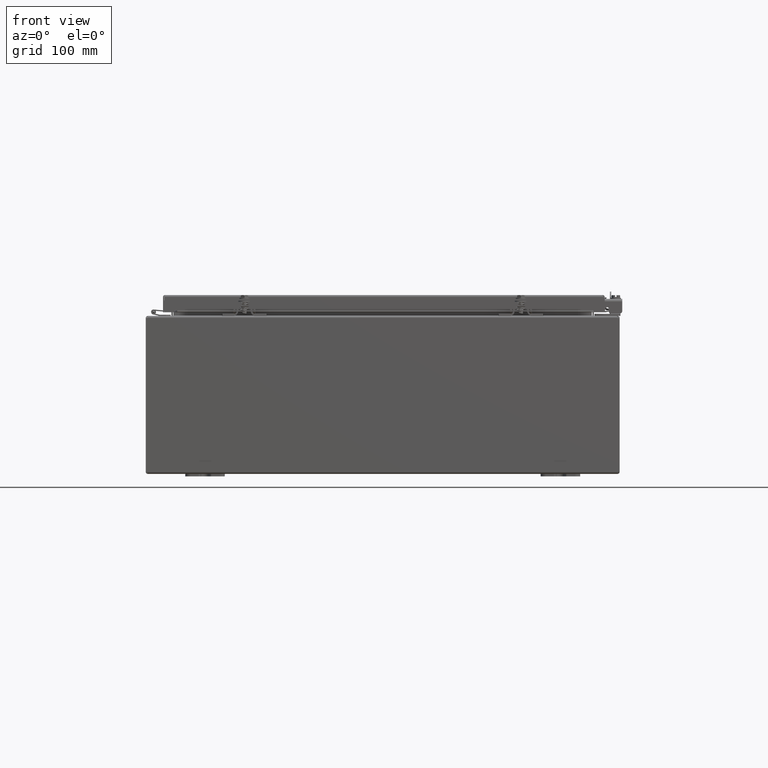
[diagram: clean part render]
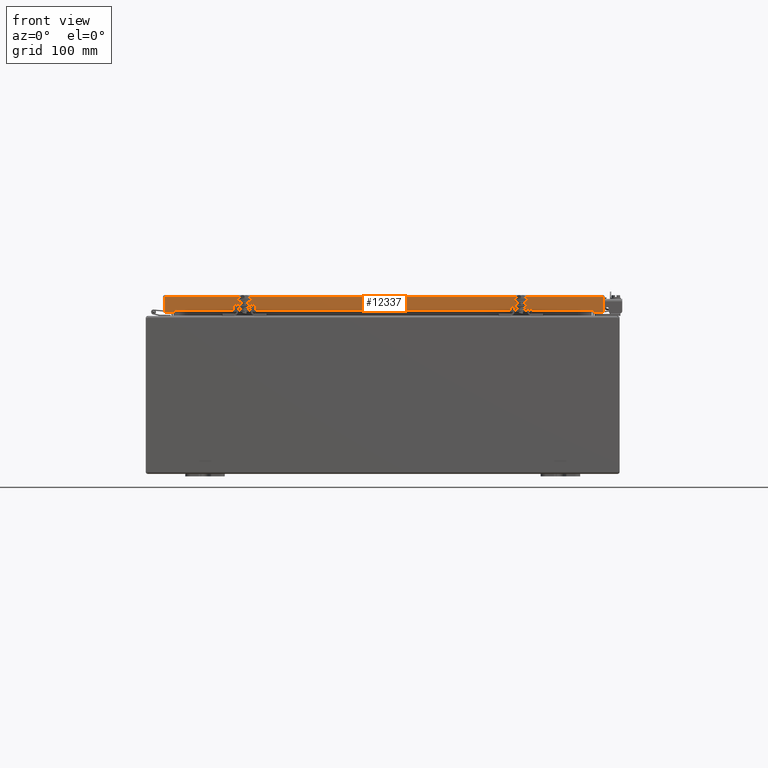
[diagram: same view with one face highlighted and labeled with its STEP entity id]
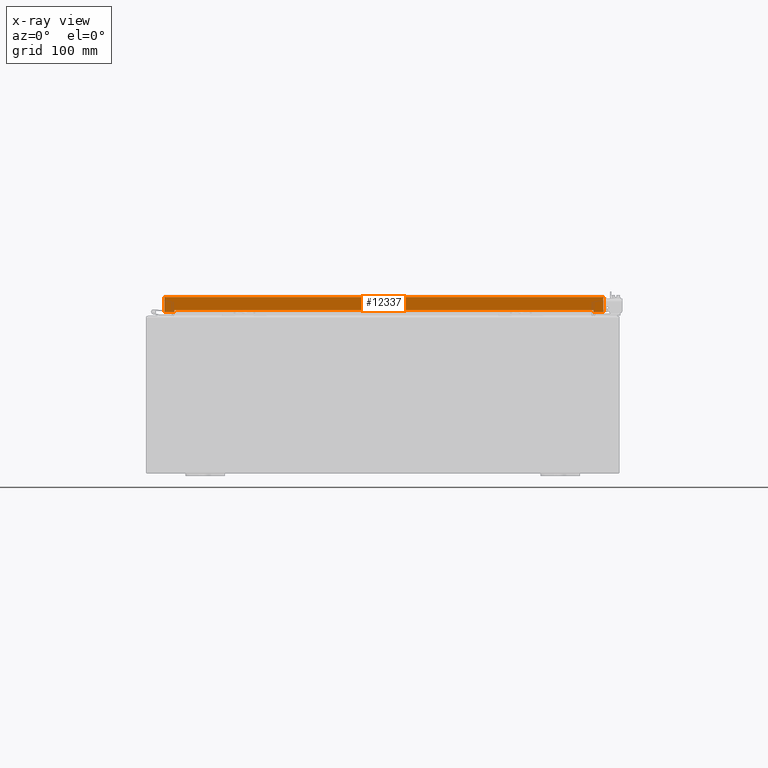
[diagram: x-ray of the same camera — body ghosted, the highlighted face saturated]
A machine part, front view. The second image highlights one B-rep face of the part: STEP entity #12337.
The next image is the same camera in x-ray: the body ghosted, the highlighted face saturated — about 0% of this face is hidden behind the body in this view.
In plain terms, the highlighted planar face has unit normal (-0, 1, -0).
Its self-contained STEP definition (entity closure, byte-faithful):
#1274=PLANE('',#13106);
#1886=LINE('',#20406,#3003);
#1951=LINE('',#20544,#3068);
#1954=LINE('',#20552,#3071);
#1957=LINE('',#20556,#3074);
#1967=LINE('',#20577,#3084);
#1969=LINE('',#20581,#3086);
#1971=LINE('',#20584,#3088);
#1972=LINE('',#20587,#3089);
#1973=LINE('',#20589,#3090);
#1974=LINE('',#20591,#3091);
#1975=LINE('',#20593,#3092);
#1976=LINE('',#20594,#3093);
#3003=VECTOR('',#14855,21.2255857864376);
#3068=VECTOR('',#14974,0.000199999999999981);
#3071=VECTOR('',#14979,0.105449999999999);
#3074=VECTOR('',#14984,0.000199999999999981);
#3084=VECTOR('',#14998,0.105449999999999);
#3086=VECTOR('',#15002,0.000199999999999981);
#3088=VECTOR('',#15006,0.000199999999999981);
#3089=VECTOR('',#15009,0.4998);
#3090=VECTOR('',#15010,0.76975);
#3091=VECTOR('',#15011,22.2255857864376);
#3092=VECTOR('',#15012,0.76975);
#3093=VECTOR('',#15013,0.4998);
#4083=FACE_OUTER_BOUND('',#4793,.T.);
#4793=EDGE_LOOP('',(#9857,#9858,#9859,#9860,#9861,#9862,#9863,#9864,#9865,
#9866,#9867,#9868));
#5963=VERTEX_POINT('',#20395);
#5964=VERTEX_POINT('',#20399);
#6010=VERTEX_POINT('',#20542);
#6013=VERTEX_POINT('',#20549);
#6014=VERTEX_POINT('',#20551);
#6022=VERTEX_POINT('',#20574);
#6023=VERTEX_POINT('',#20576);
#6024=VERTEX_POINT('',#20580);
#6025=VERTEX_POINT('',#20586);
#6026=VERTEX_POINT('',#20588);
#6027=VERTEX_POINT('',#20590);
#6028=VERTEX_POINT('',#20592);
#7342=EDGE_CURVE('',#5963,#5964,#1886,.T.);
#7411=EDGE_CURVE('',#5964,#6010,#1951,.T.);
#7414=EDGE_CURVE('',#6014,#6013,#1954,.T.);
#7417=EDGE_CURVE('',#6010,#6014,#1957,.T.);
#7427=EDGE_CURVE('',#6023,#6022,#1967,.T.);
#7429=EDGE_CURVE('',#6024,#5963,#1969,.T.);
#7431=EDGE_CURVE('',#6022,#6024,#1971,.T.);
#7432=EDGE_CURVE('',#6025,#6013,#1972,.T.);
#7433=EDGE_CURVE('',#6026,#6025,#1973,.T.);
#7434=EDGE_CURVE('',#6026,#6027,#1974,.T.);
#7435=EDGE_CURVE('',#6028,#6027,#1975,.T.);
#7436=EDGE_CURVE('',#6023,#6028,#1976,.T.);
#9857=ORIENTED_EDGE('',*,*,#7414,.T.);
#9858=ORIENTED_EDGE('',*,*,#7432,.F.);
#9859=ORIENTED_EDGE('',*,*,#7433,.F.);
#9860=ORIENTED_EDGE('',*,*,#7434,.T.);
#9861=ORIENTED_EDGE('',*,*,#7435,.F.);
#9862=ORIENTED_EDGE('',*,*,#7436,.F.);
#9863=ORIENTED_EDGE('',*,*,#7427,.T.);
#9864=ORIENTED_EDGE('',*,*,#7431,.T.);
#9865=ORIENTED_EDGE('',*,*,#7429,.T.);
#9866=ORIENTED_EDGE('',*,*,#7342,.T.);
#9867=ORIENTED_EDGE('',*,*,#7411,.T.);
#9868=ORIENTED_EDGE('',*,*,#7417,.T.);
#12337=ADVANCED_FACE('',(#4083),#1274,.F.);
#13106=AXIS2_PLACEMENT_3D('',#20585,#15007,#15008);
#14855=DIRECTION('',(1.,2.74943724106321E-19,-5.76600294321961E-17));
#14974=DIRECTION('',(0.,-5.77879397723394E-15,-1.));
#14979=DIRECTION('',(0.,5.77879397723394E-15,1.));
#14984=DIRECTION('',(1.,2.74943724106655E-19,-1.62400964555966E-33));
#14998=DIRECTION('',(0.,-5.77879397723394E-15,-1.));
#15002=DIRECTION('',(0.,5.77879397723394E-15,1.));
#15006=DIRECTION('',(1.,2.74943724106655E-19,-1.62400964555966E-33));
#15007=DIRECTION('center_axis',(2.74943724106655E-19,-1.,5.77879397723394E-15));
#15008=DIRECTION('ref_axis',(1.,0.,0.));
#15009=DIRECTION('',(-1.,3.38087482385635E-31,6.27214261020504E-17));
#15010=DIRECTION('',(0.,5.39030285815812E-15,1.));
#15011=DIRECTION('',(-1.,-2.74943724106655E-19,1.48202994188474E-33));
#15012=DIRECTION('',(5.45127446348594E-15,-5.77879397723394E-15,-1.));
#15013=DIRECTION('',(-1.,3.38087482385635E-31,6.27214261020504E-17));
#20395=CARTESIAN_POINT('',(-10.6127928932188,11.09375,0.76975));
#20399=CARTESIAN_POINT('',(10.6127928932188,11.09375,0.769749999999999));
#20406=CARTESIAN_POINT('',(5.28483568253601,11.09375,0.769749999999999));
#20542=CARTESIAN_POINT('',(10.6127928932188,11.09375,0.769549999999999));
#20544=CARTESIAN_POINT('',(10.6127928932188,11.09375,0.613316981724672));
#20549=CARTESIAN_POINT('',(10.6129928932188,11.09375,0.874999999999998));
#20551=CARTESIAN_POINT('',(10.6129928932188,11.09375,0.769549999999999));
#20552=CARTESIAN_POINT('',(10.6129928932188,11.09375,0.666041981724672));
#20556=CARTESIAN_POINT('',(5.28493568253601,11.09375,0.769549999999999));
#20574=CARTESIAN_POINT('',(-10.6129928932188,11.09375,0.76955));
#20576=CARTESIAN_POINT('',(-10.6129928932188,11.09375,0.874999999999999));
#20577=CARTESIAN_POINT('',(-10.6129928932188,11.09375,0.613316981724673));
#20580=CARTESIAN_POINT('',(-10.6127928932188,11.09375,0.76955));
#20581=CARTESIAN_POINT('',(-10.6127928932188,11.09375,0.666041981724673));
#20584=CARTESIAN_POINT('',(-5.3279572106828,11.09375,0.76955));
#20585=CARTESIAN_POINT('Origin',(-0.0431215281467932,11.09375,0.457083963449346));
#20586=CARTESIAN_POINT('',(11.1127928932188,11.09375,0.874999999999999));
#20587=CARTESIAN_POINT('',(11.1127928932188,11.09375,0.874999999999999));
#20588=CARTESIAN_POINT('',(11.1127928932188,11.09375,0.105249999999998));
#20589=CARTESIAN_POINT('',(11.1127928932188,11.09375,0.105249999999998));
#20590=CARTESIAN_POINT('',(-11.1127928932188,11.09375,0.105249999999999));
#20591=CARTESIAN_POINT('',(-0.0478732640733969,11.09375,0.105249999999998));
#20592=CARTESIAN_POINT('',(-11.1127928932188,11.09375,0.874999999999999));
#20593=CARTESIAN_POINT('',(-11.1127928932188,11.09375,0.473604481724642));
#20594=CARTESIAN_POINT('',(11.1127928932188,11.09375,0.874999999999999));